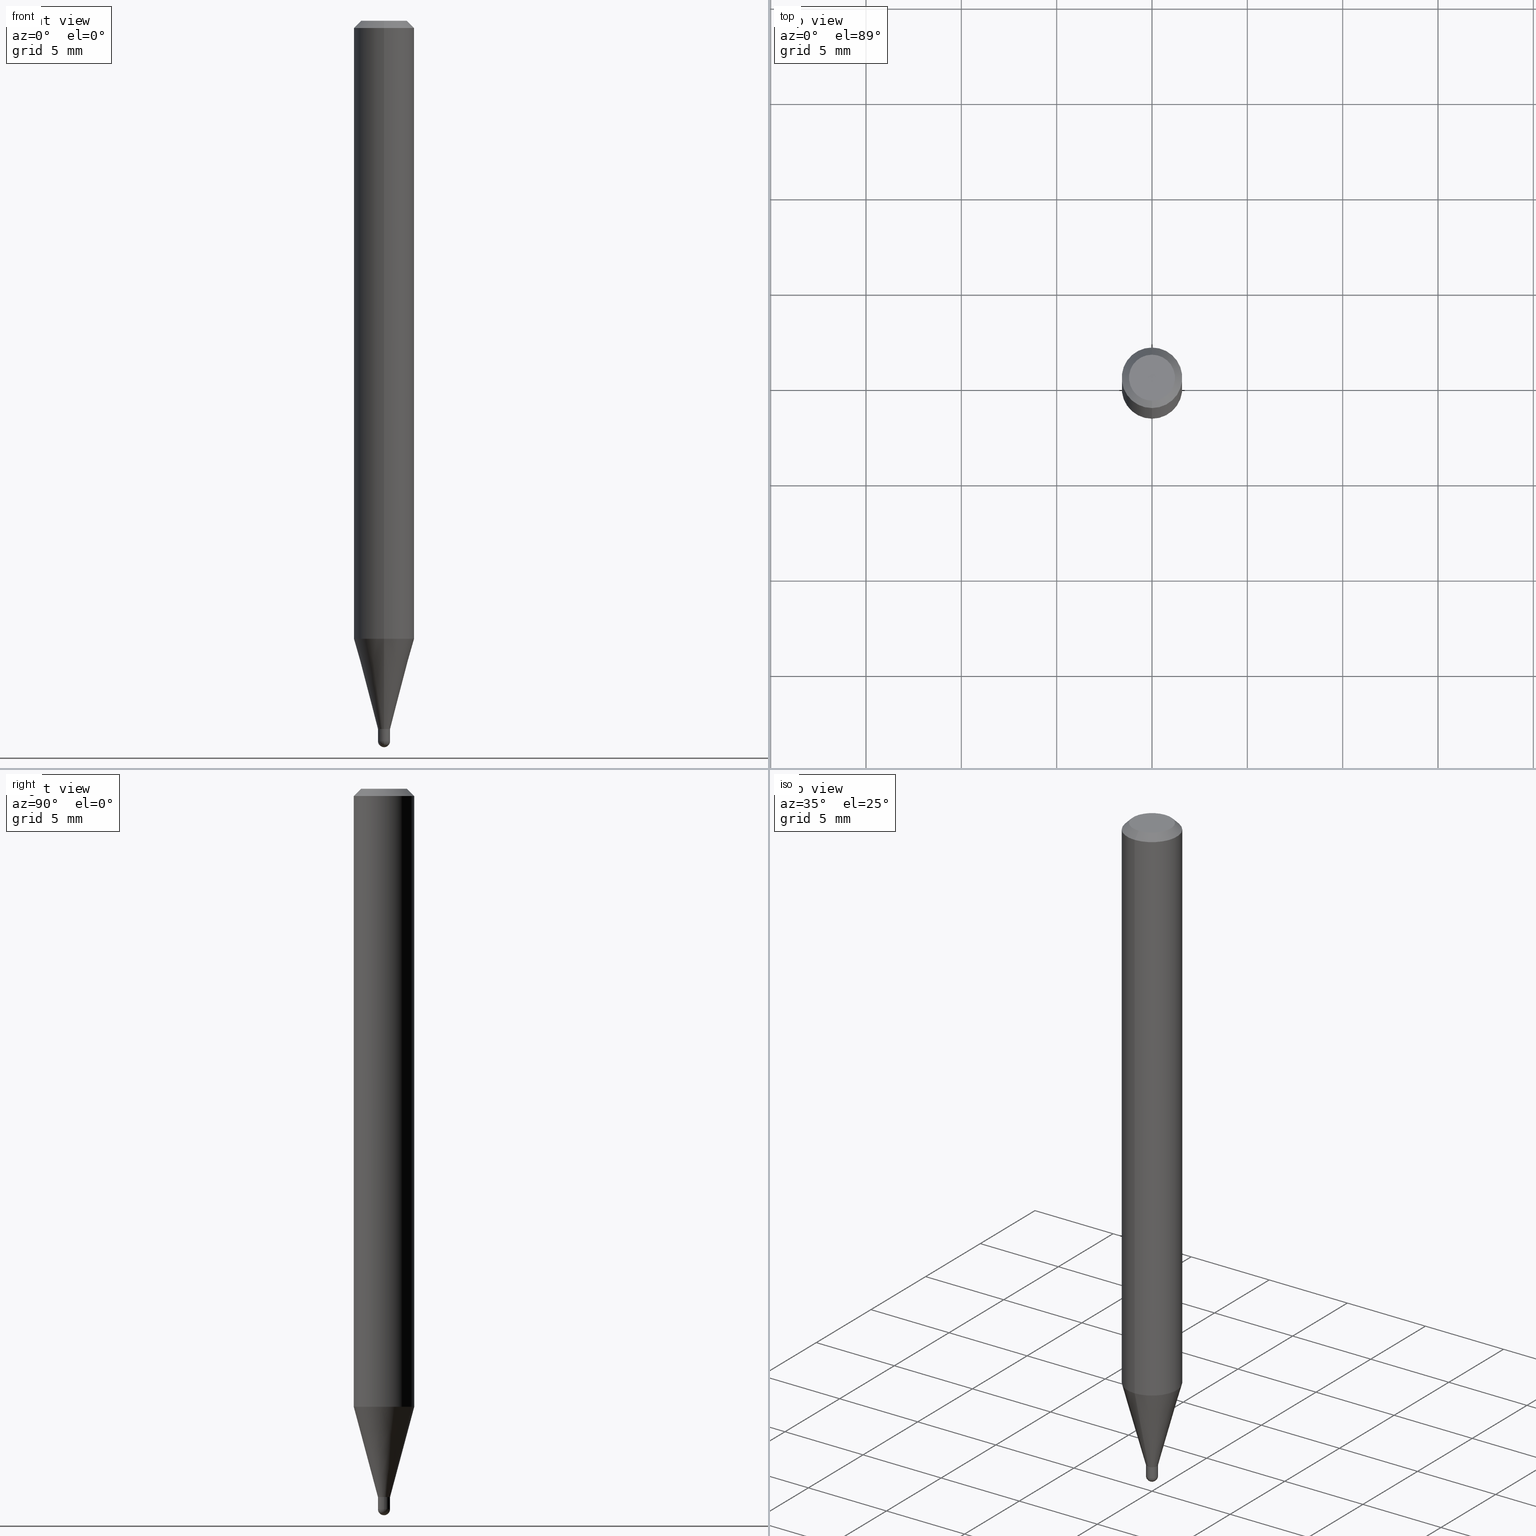
[diagram: canonical four-view strip — front | top / right | iso, engineering-drawing reading convention]
A machine part, canonical four-view strip (front | top / right | iso — engineering-drawing reading convention). The complete STEP part file that produces these views, byte-faithful:
ISO-10303-21;
HEADER;
FILE_DESCRIPTION (( 'STEP AP203' ),
    '1' );
FILE_NAME ('01382.STEP',
    '2024-03-07T20:09:45',
    ( '' ),
    ( '' ),
    'SwSTEP 2.0',
    'SolidWorks 2023',
    '' );
FILE_SCHEMA (( 'CONFIG_CONTROL_DESIGN' ));
ENDSEC;

DATA;
#1 = CALENDAR_DATE ( 2024, 7, 3 ) ;
#2 = CARTESIAN_POINT ( 'NONE',  ( 3.668218435147689277E-31, -5.237200203952304114E-17, -0.01500000000000000812 ) ) ;
#3 = CARTESIAN_POINT ( 'NONE',  ( -0.01250000000000000243, 8.881784197001254049E-17, -6.148668862818633278E-31 ) ) ;
#4 = VERTEX_POINT ( 'NONE', #353 ) ;
#5 = CARTESIAN_POINT ( 'NONE',  ( 3.637634849200391585E-29, -5.193578491529179799E-15, -1.487500000000000488 ) ) ;
#6 = ORIENTED_EDGE ( 'NONE', *, *, #118, .T. ) ;
#7 = DIRECTION ( 'NONE',  ( -2.445478956765124667E-29, 3.491466802634867700E-15, 1.000000000000000000 ) ) ;
#8 = AXIS2_PLACEMENT_3D ( 'NONE', #221, #7, #485 ) ;
#9 = ORIENTED_EDGE ( 'NONE', *, *, #12, .F. ) ;
#10 = CARTESIAN_POINT ( 'NONE',  ( 3.576512974268995298E-29, -5.106270198853495599E-15, -1.462500000000000355 ) ) ;
#11 = ORIENTED_EDGE ( 'NONE', *, *, #216, .F. ) ;
#12 = EDGE_CURVE ( 'NONE', #169, #51, #499, .T. ) ;
#13 = CARTESIAN_POINT ( 'NONE',  ( 3.668218435147689277E-31, -5.237200203952304114E-17, -0.01500000000000000812 ) ) ;
#14 = ORIENTED_EDGE ( 'NONE', *, *, #399, .F. ) ;
#15 = PERSON_AND_ORGANIZATION ( #387, #48 ) ;
#16 = CONICAL_SURFACE ( 'NONE', #154, 0.01200000000000000198, 0.7853981633974739252 ) ;
#17 = VERTEX_POINT ( 'NONE', #270 ) ;
#18 = CIRCLE ( 'NONE', #255, 0.04749999999999999362 ) ;
#19 = DIRECTION ( 'NONE',  ( -6.982962677686266711E-15, -1.000000000000000000, 0.000000000000000000 ) ) ;
#20 = UNCERTAINTY_MEASURE_WITH_UNIT (LENGTH_MEASURE( 1.000000000000000082E-05 ), #262, 'distance_accuracy_value', 'NONE');
#21 = PRODUCT_DEFINITION_SHAPE ( 'NONE', 'NONE',  #135 ) ;
#22 = ORIENTED_EDGE ( 'NONE', *, *, #294, .T. ) ;
#23 = CARTESIAN_POINT ( 'NONE',  ( -0.01250000000000000243, -5.061117132823627635E-15, -1.487500000000000488 ) ) ;
#24 = CARTESIAN_POINT ( 'NONE',  ( 3.666599772485494312E-29, -5.239518221013120565E-15, -1.500000000000000444 ) ) ;
#25 = ORIENTED_EDGE ( 'NONE', *, *, #476, .F. ) ;
#26 = CARTESIAN_POINT ( 'NONE',  ( 0.000000000000000000, 0.000000000000000000, 0.000000000000000000 ) ) ;
#27 = EDGE_LOOP ( 'NONE', ( #502, #220 ) ) ;
#28 = ADVANCED_FACE ( 'NONE', ( #150 ), #393, .T. ) ;
#29 = ORIENTED_EDGE ( 'NONE', *, *, #410, .F. ) ;
#30 = EDGE_CURVE ( 'NONE', #369, #4, #469, .T. ) ;
#31 = PERSON_AND_ORGANIZATION ( #387, #48 ) ;
#32 = CARTESIAN_POINT ( 'NONE',  ( 3.120180388494611084E-29, -4.454753623834846326E-15, -1.275897459621562424 ) ) ;
#33 = AXIS2_PLACEMENT_3D ( 'NONE', #360, #245, #326 ) ;
#34 = CARTESIAN_POINT ( 'NONE',  ( 8.704148513064776254E-17, 0.01199999999999489496, -1.462500000000000133 ) ) ;
#35 = COORDINATED_UNIVERSAL_TIME_OFFSET ( 5, 0, .BEHIND. ) ;
#36 = DIRECTION ( 'NONE',  ( -2.445478956765124667E-29, 3.491466802634867700E-15, 1.000000000000000000 ) ) ;
#37 = EDGE_LOOP ( 'NONE', ( #503, #89, #449, #373 ) ) ;
#38 = CARTESIAN_POINT ( 'NONE',  ( 3.576512974268995298E-29, -5.106270198853495599E-15, -1.462500000000000355 ) ) ;
#39 = LOCAL_TIME ( 15, 9, 45.00000000000000000, #284 ) ;
#40 = CLOSED_SHELL ( 'NONE', ( #28, #456, #351, #354, #275 ) ) ;
#41 = VECTOR ( 'NONE', #176, 39.37007874015748143 ) ;
#42 = CARTESIAN_POINT ( 'NONE',  ( 3.637634849200391585E-29, -5.193578491529179799E-15, -1.487500000000000488 ) ) ;
#43 = EDGE_CURVE ( 'NONE', #193, #17, #58, .T. ) ;
#44 = LINE ( 'NONE', #288, #500 ) ;
#45 = ORIENTED_EDGE ( 'NONE', *, *, #104, .F. ) ;
#46 = DIRECTION ( 'NONE',  ( -6.982962677686266711E-15, -1.000000000000000000, 0.000000000000000000 ) ) ;
#47 = ORIENTED_EDGE ( 'NONE', *, *, #63, .F. ) ;
#48 = ORGANIZATION ( 'UNSPECIFIED', 'UNSPECIFIED', '' ) ;
#49 = CARTESIAN_POINT ( 'NONE',  ( 4.364351673553919652E-16, 0.06249999999999995143, -0.01500000000000022669 ) ) ;
#50 = VECTOR ( 'NONE', #439, 39.37007874015748143 ) ;
#51 = VERTEX_POINT ( 'NONE', #234 ) ;
#52 = EDGE_CURVE ( 'NONE', #458, #508, #200, .T. ) ;
#53 = FACE_OUTER_BOUND ( 'NONE', #452, .T. ) ;
#54 = VERTEX_POINT ( 'NONE', #392 ) ;
#55 = ORIENTED_EDGE ( 'NONE', *, *, #237, .F. ) ;
#56 = APPROVAL_ROLE ( '' ) ;
#57 = AXIS2_PLACEMENT_3D ( 'NONE', #421, #501, #388 ) ;
#58 = CIRCLE ( 'NONE', #128, 0.01200000000000000198 ) ;
#59 = CARTESIAN_POINT ( 'NONE',  ( 3.576498129045762161E-29, -5.106291458058100676E-15, -1.462500000000000133 ) ) ;
#60 = DIRECTION ( 'NONE',  ( -6.982962677686265922E-15, -1.000000000000000000, 0.000000000000000000 ) ) ;
#61 = DIRECTION ( 'NONE',  ( 1.000000000000000000, -6.982962677686294321E-15, 0.000000000000000000 ) ) ;
#62 = LINE ( 'NONE', #226, #211 ) ;
#63 = EDGE_CURVE ( 'NONE', #172, #420, #371, .T. ) ;
#64 = ORIENTED_EDGE ( 'NONE', *, *, #183, .T. ) ;
#65 = CIRCLE ( 'NONE', #400, 0.01249999999999992610 ) ;
#66 = DIRECTION ( 'NONE',  ( -2.445478956765124667E-29, 3.491466802634867700E-15, 1.000000000000000000 ) ) ;
#67 = AXIS2_PLACEMENT_3D ( 'NONE', #349, #110, #19 ) ;
#68 = EDGE_CURVE ( 'NONE', #350, #508, #188, .T. ) ;
#69 = AXIS2_PLACEMENT_3D ( 'NONE', #337, #417, #450 ) ;
#70 = DIRECTION ( 'NONE',  ( -2.445478956765124947E-29, 3.491466802634867700E-15, 1.000000000000000000 ) ) ;
#71 = DIRECTION ( 'NONE',  ( -6.982962677686266711E-15, -1.000000000000000000, 3.491466802634868095E-15 ) ) ;
#72 = ORIENTED_EDGE ( 'NONE', *, *, #43, .T. ) ;
#73 = PERSON_AND_ORGANIZATION_ROLE ( 'design_supplier' ) ;
#74 = DIRECTION ( 'NONE',  ( -2.445478956765124667E-29, 3.491466802634867700E-15, 1.000000000000000000 ) ) ;
#75 = AXIS2_PLACEMENT_3D ( 'NONE', #267, #312, #60 ) ;
#76 = CIRCLE ( 'NONE', #94, 0.01250000000000000243 ) ;
#77 = CALENDAR_DATE ( 2024, 7, 3 ) ;
#78 = EDGE_CURVE ( 'NONE', #460, #437, #173, .T. ) ;
#79 = FACE_OUTER_BOUND ( 'NONE', #37, .T. ) ;
#80 = DIRECTION ( 'NONE',  ( -2.445478956765124667E-29, 3.491466802634867700E-15, 1.000000000000000000 ) ) ;
#81 = CARTESIAN_POINT ( 'NONE',  ( -8.379555213219944590E-17, -0.01200000000000510901, -1.462500000000000133 ) ) ;
#82 = EDGE_CURVE ( 'NONE', #51, #54, #309, .T. ) ;
#83 = AXIS2_PLACEMENT_3D ( 'NONE', #192, #146, #184 ) ;
#84 = CONICAL_SURFACE ( 'NONE', #235, 0.01200000000000000198, 0.7853981633974739252 ) ;
#85 = CARTESIAN_POINT ( 'NONE',  ( 4.440892098500939734E-16, 0.06249999999999995143, -0.01500000000000022669 ) ) ;
#86 = ORIENTED_EDGE ( 'NONE', *, *, #480, .T. ) ;
#87 = EDGE_CURVE ( 'NONE', #296, #369, #148, .T. ) ;
#88 = DIRECTION ( 'NONE',  ( 1.000000000000000000, -6.982962677686266711E-15, 4.883557194083112901E-29 ) ) ;
#89 = ORIENTED_EDGE ( 'NONE', *, *, #237, .T. ) ;
#90 = FACE_OUTER_BOUND ( 'NONE', #268, .T. ) ;
#91 = VERTEX_POINT ( 'NONE', #23 ) ;
#92 = AXIS2_PLACEMENT_3D ( 'NONE', #384, #426, #305 ) ;
#93 = FACE_OUTER_BOUND ( 'NONE', #27, .T. ) ;
#94 = AXIS2_PLACEMENT_3D ( 'NONE', #42, #276, #117 ) ;
#95 = ORIENTED_EDGE ( 'NONE', *, *, #87, .T. ) ;
#96 = DIRECTION ( 'NONE',  ( 2.438088387897960049E-29, -3.491481338843145188E-15, -1.000000000000000000 ) ) ;
#97 = EDGE_LOOP ( 'NONE', ( #25, #483 ) ) ;
#98 = APPROVAL_STATUS ( 'not_yet_approved' ) ;
#99 = CARTESIAN_POINT ( 'NONE',  ( 0.000000000000000000, 0.000000000000000000, 0.000000000000000000 ) ) ;
#100 = MECHANICAL_CONTEXT ( 'NONE', #143, 'mechanical' ) ;
#101 = AXIS2_PLACEMENT_3D ( 'NONE', #230, #190, #315 ) ;
#102 = ORIENTED_EDGE ( 'NONE', *, *, #423, .T. ) ;
#103 = VECTOR ( 'NONE', #203, 39.37007874015748854 ) ;
#104 = EDGE_CURVE ( 'NONE', #250, #4, #236, .T. ) ;
#105 = APPROVAL_DATE_TIME ( #310, #385 ) ;
#106 = CARTESIAN_POINT ( 'NONE',  ( 2.166941364163083057E-46, -3.093792246832395657E-32, -8.861010061724306558E-18 ) ) ;
#107 = DIRECTION ( 'NONE',  ( 1.839019923739652380E-15, 0.2588190451025322858, 0.9659258262890650926 ) ) ;
#108 = EDGE_CURVE ( 'NONE', #420, #172, #18, .T. ) ;
#109 = DIRECTION ( 'NONE',  ( -6.982962677686265922E-15, -1.000000000000000000, 3.483106191921935554E-15 ) ) ;
#110 = DIRECTION ( 'NONE',  ( -1.000000000000000000, 6.982962677686265922E-15, -4.883557194083112340E-29 ) ) ;
#111 = ORIENTED_EDGE ( 'NONE', *, *, #126, .T. ) ;
#112 = DIMENSIONAL_EXPONENTS ( 1.000000000000000000, 0.000000000000000000, 0.000000000000000000, 0.000000000000000000, 0.000000000000000000, 0.000000000000000000, 0.000000000000000000 ) ;
#113 = CIRCLE ( 'NONE', #486, 0.01250000000000000243 ) ;
#114 = PERSON_AND_ORGANIZATION ( #387, #48 ) ;
#115 = LINE ( 'NONE', #161, #103 ) ;
#116 = DATE_TIME_ROLE ( 'classification_date' ) ;
#117 = DIRECTION ( 'NONE',  ( 1.000000000000000000, -6.982962677686292743E-15, 0.000000000000000000 ) ) ;
#118 = EDGE_CURVE ( 'NONE', #17, #508, #286, .T. ) ;
#119 = APPROVAL_ROLE ( '' ) ;
#120 = FACE_OUTER_BOUND ( 'NONE', #336, .T. ) ;
#121 = CC_DESIGN_SECURITY_CLASSIFICATION ( #308, ( #264 ) ) ;
#122 = DIRECTION ( 'NONE',  ( 1.000000000000000000, -6.982962677686267499E-15, 4.876176775795936353E-29 ) ) ;
#123 = CARTESIAN_POINT ( 'NONE',  ( 3.576512974268994737E-29, -5.106270198853494022E-15, -1.462500000000000133 ) ) ;
#124 = ADVANCED_FACE ( 'NONE', ( #241 ), #391, .T. ) ;
#125 = DIRECTION ( 'NONE',  ( -6.982962677686265922E-15, -1.000000000000000000, 3.483106191921935554E-15 ) ) ;
#126 = EDGE_CURVE ( 'NONE', #250, #296, #432, .T. ) ;
#127 = ORIENTED_EDGE ( 'NONE', *, *, #126, .F. ) ;
#128 = AXIS2_PLACEMENT_3D ( 'NONE', #429, #66, #144 ) ;
#129 = AXIS2_PLACEMENT_3D ( 'NONE', #38, #80, #436 ) ;
#130 = CARTESIAN_POINT ( 'NONE',  ( 3.576512974268994737E-29, -5.106270198853494022E-15, -1.462500000000000133 ) ) ;
#131 = ORIENTED_EDGE ( 'NONE', *, *, #68, .T. ) ;
#132 = EDGE_CURVE ( 'NONE', #91, #224, #113, .T. ) ;
#133 = DIRECTION ( 'NONE',  ( -2.445478956765124667E-29, 3.491466802634867700E-15, 1.000000000000000000 ) ) ;
#134 = ORIENTED_EDGE ( 'NONE', *, *, #476, .T. ) ;
#135 = PRODUCT_DEFINITION ( 'UNKNOWN', '', #264, #259 ) ;
#136 = DIRECTION ( 'NONE',  ( -2.445478956765124667E-29, 3.491466802634867700E-15, 1.000000000000000000 ) ) ;
#137 = ORIENTED_EDGE ( 'NONE', *, *, #294, .F. ) ;
#138 = AXIS2_PLACEMENT_3D ( 'NONE', #335, #88, #46 ) ;
#139 = AXIS2_PLACEMENT_3D ( 'NONE', #26, #462, #382 ) ;
#140 = DIRECTION ( 'NONE',  ( 1.000000000000000000, -6.982962677686292743E-15, 0.000000000000000000 ) ) ;
#141 = CIRCLE ( 'NONE', #274, 0.06250000000000000000 ) ;
#142 = ORIENTED_EDGE ( 'NONE', *, *, #183, .F. ) ;
#143 = APPLICATION_CONTEXT ( 'configuration controlled 3d designs of mechanical parts and assemblies' ) ;
#144 = DIRECTION ( 'NONE',  ( -6.982962677686265922E-15, -1.000000000000000000, 0.000000000000000000 ) ) ;
#145 = CARTESIAN_POINT ( 'NONE',  ( 3.668218435147689277E-31, -5.237200203952304114E-17, -0.01500000000000000812 ) ) ;
#146 = DIRECTION ( 'NONE',  ( -2.445468806185136597E-29, 3.491481338843145583E-15, 1.000000000000000000 ) ) ;
#147 = LOCAL_TIME ( 15, 9, 45.00000000000000000, #189 ) ;
#148 = LINE ( 'NONE', #343, #201 ) ;
#149 = AXIS2_PLACEMENT_3D ( 'NONE', #440, #36, #362 ) ;
#150 = FACE_OUTER_BOUND ( 'NONE', #342, .T. ) ;
#151 = CARTESIAN_POINT ( 'NONE',  ( 8.881784197004743526E-17, 0.01249999999999477918, -1.462000000000000188 ) ) ;
#152 = VERTEX_POINT ( 'NONE', #404 ) ;
#153 = PERSON_AND_ORGANIZATION ( #387, #48 ) ;
#154 = AXIS2_PLACEMENT_3D ( 'NONE', #488, #133, #448 ) ;
#155 = FACE_OUTER_BOUND ( 'NONE', #463, .T. ) ;
#156 = CIRCLE ( 'NONE', #129, 0.01249999999999992610 ) ;
#157 = CALENDAR_DATE ( 2024, 7, 3 ) ;
#158 = CARTESIAN_POINT ( 'NONE',  ( 3.637634849200391585E-29, -5.193578491529179799E-15, -1.487500000000000488 ) ) ;
#159 = DATE_TIME_ROLE ( 'creation_date' ) ;
#160 = DIRECTION ( 'NONE',  ( 6.982962677686265922E-15, 1.000000000000000000, -3.483106191921935554E-15 ) ) ;
#161 = CARTESIAN_POINT ( 'NONE',  ( -8.728703347104204628E-17, -0.01250000000000503313, -1.462500000000000355 ) ) ;
#162 =( GEOMETRIC_REPRESENTATION_CONTEXT ( 3 ) GLOBAL_UNCERTAINTY_ASSIGNED_CONTEXT ( ( #20 ) ) GLOBAL_UNIT_ASSIGNED_CONTEXT ( ( #262, #495, #497 ) ) REPRESENTATION_CONTEXT ( 'NONE', 'WORKASPACE' ) );
#163 = PERSON_AND_ORGANIZATION ( #387, #48 ) ;
#164 = CARTESIAN_POINT ( 'NONE',  ( 3.120180388494611084E-29, -4.454753623834846326E-15, -1.275897459621562424 ) ) ;
#165 = PRODUCT ( '01382', '01382', '', ( #100 ) ) ;
#166 = ORIENTED_EDGE ( 'NONE', *, *, #325, .T. ) ;
#167 = APPLICATION_CONTEXT ( 'configuration controlled 3d designs of mechanical parts and assemblies' ) ;
#168 = DIRECTION ( 'NONE',  ( -2.445468806185136877E-29, 3.491481338843145188E-15, 1.000000000000000000 ) ) ;
#169 = VERTEX_POINT ( 'NONE', #282 ) ;
#170 = CARTESIAN_POINT ( 'NONE',  ( 0.000000000000000000, 0.000000000000000000, 0.000000000000000000 ) ) ;
#171 = MANIFOLD_SOLID_BREP ( 'Body-Move/Copy2[1]', #40 ) ;
#172 = VERTEX_POINT ( 'NONE', #395 ) ;
#173 = CIRCLE ( 'NONE', #461, 0.01250000000000010651 ) ;
#174 = MANIFOLD_SOLID_BREP ( 'Body-Move/Copy2[2]', #272 ) ;
#175 = AXIS2_PLACEMENT_3D ( 'NONE', #178, #408, #482 ) ;
#176 = DIRECTION ( 'NONE',  ( -2.445478956765124947E-29, 3.491466802634867700E-15, 1.000000000000000000 ) ) ;
#177 = ORIENTED_EDGE ( 'NONE', *, *, #198, .F. ) ;
#178 = CARTESIAN_POINT ( 'NONE',  ( 3.316907271900976096E-16, 0.04749999999999999362, -1.702751781560183396E-16 ) ) ;
#179 = ORIENTED_EDGE ( 'NONE', *, *, #253, .F. ) ;
#180 = DIRECTION ( 'NONE',  ( -2.445468806185136597E-29, 3.491481338843145583E-15, 1.000000000000000000 ) ) ;
#181 = EDGE_LOOP ( 'NONE', ( #266, #72, #6, #332 ) ) ;
#182 = LOCAL_TIME ( 15, 9, 45.00000000000000000, #35 ) ;
#183 = EDGE_CURVE ( 'NONE', #224, #169, #76, .T. ) ;
#184 = DIRECTION ( 'NONE',  ( 1.000000000000000000, -6.982962677686292743E-15, 0.000000000000000000 ) ) ;
#185 = VECTOR ( 'NONE', #168, 39.37007874015748143 ) ;
#186 = ORIENTED_EDGE ( 'NONE', *, *, #297, .T. ) ;
#187 = DIRECTION ( 'NONE',  ( -6.982962677686266711E-15, -1.000000000000000000, 0.000000000000000000 ) ) ;
#188 = LINE ( 'NONE', #195, #398 ) ;
#189 = COORDINATED_UNIVERSAL_TIME_OFFSET ( 5, 0, .BEHIND. ) ;
#190 = DIRECTION ( 'NONE',  ( -2.445478956765124667E-29, 3.491466802634867700E-15, 1.000000000000000000 ) ) ;
#191 = ADVANCED_FACE ( 'NONE', ( #280 ), #209, .F. ) ;
#192 = CARTESIAN_POINT ( 'NONE',  ( 3.637634849200391585E-29, -5.193578491529179799E-15, -1.487500000000000488 ) ) ;
#193 = VERTEX_POINT ( 'NONE', #34 ) ;
#194 = CC_DESIGN_PERSON_AND_ORGANIZATION_ASSIGNMENT ( #376, #424, ( #165 ) ) ;
#195 = CARTESIAN_POINT ( 'NONE',  ( -8.728703347107781619E-17, -0.01249999999999992610, 4.364333503293559234E-17 ) ) ;
#196 = PERSON_AND_ORGANIZATION ( #387, #48 ) ;
#197 = ORIENTED_EDGE ( 'NONE', *, *, #82, .F. ) ;
#198 = EDGE_CURVE ( 'NONE', #152, #350, #156, .T. ) ;
#199 = CARTESIAN_POINT ( 'NONE',  ( -4.287811248607203282E-16, -0.06250000000000005551, -0.01499999999999979128 ) ) ;
#200 = CIRCLE ( 'NONE', #101, 0.01249999999999992610 ) ;
#201 = VECTOR ( 'NONE', #70, 39.37007874015748143 ) ;
#202 = PERSON_AND_ORGANIZATION_ROLE ( 'creator' ) ;
#203 = DIRECTION ( 'NONE',  ( -1.807323732225381415E-15, -0.2588190451025255134, 0.9659258262890669799 ) ) ;
#204 = ADVANCED_FACE ( 'NONE', ( #120 ), #84, .T. ) ;
#205 = DATE_AND_TIME ( #1, #378 ) ;
#206 = FACE_OUTER_BOUND ( 'NONE', #493, .T. ) ;
#207 = ORIENTED_EDGE ( 'NONE', *, *, #216, .T. ) ;
#208 = SHAPE_DEFINITION_REPRESENTATION ( #21, #304 ) ;
#209 = CYLINDRICAL_SURFACE ( 'NONE', #283, 0.01249999999999992610 ) ;
#210 = AXIS2_PLACEMENT_3D ( 'NONE', #269, #465, #187 ) ;
#211 = VECTOR ( 'NONE', #107, 39.37007874015748143 ) ;
#212 = CC_DESIGN_PERSON_AND_ORGANIZATION_ASSIGNMENT ( #323, #509, ( #135 ) ) ;
#213 = FACE_OUTER_BOUND ( 'NONE', #97, .T. ) ;
#214 = ORIENTED_EDGE ( 'NONE', *, *, #108, .T. ) ;
#215 = FACE_OUTER_BOUND ( 'NONE', #252, .T. ) ;
#216 = EDGE_CURVE ( 'NONE', #350, #250, #115, .T. ) ;
#217 = ORIENTED_EDGE ( 'NONE', *, *, #399, .T. ) ;
#218 = CONICAL_SURFACE ( 'NONE', #33, 0.01249999999999992610, 0.2617993877991578455 ) ;
#219 = PLANE ( 'NONE',  #248 ) ;
#220 = ORIENTED_EDGE ( 'NONE', *, *, #322, .T. ) ;
#221 = CARTESIAN_POINT ( 'NONE',  ( 3.576512974268995298E-29, -5.106270198853495599E-15, -1.462500000000000355 ) ) ;
#222 = ORIENTED_EDGE ( 'NONE', *, *, #511, .T. ) ;
#223 =( LENGTH_UNIT ( ) NAMED_UNIT ( * ) SI_UNIT ( $, .METRE. ) );
#224 = VERTEX_POINT ( 'NONE', #318 ) ;
#225 = ADVANCED_FACE ( 'NONE', ( #79 ), #359, .T. ) ;
#226 = CARTESIAN_POINT ( 'NONE',  ( 8.881784197004774341E-17, 0.01249999999999481907, -1.462500000000000355 ) ) ;
#227 = DIRECTION ( 'NONE',  ( -2.445478956765124947E-29, 3.491466802634867700E-15, 1.000000000000000000 ) ) ;
#228 = SPHERICAL_SURFACE ( 'NONE', #92, 0.01250000000000010651 ) ;
#229 = ADVANCED_FACE ( 'NONE', ( #155 ), #438, .T. ) ;
#230 = CARTESIAN_POINT ( 'NONE',  ( 3.575290234790612456E-29, -5.104524465452176993E-15, -1.462000000000000188 ) ) ;
#231 = ORIENTED_EDGE ( 'NONE', *, *, #480, .F. ) ;
#232 = CIRCLE ( 'NONE', #301, 0.06250000000000000000 ) ;
#233 = CC_DESIGN_APPROVAL ( #385, ( #135 ) ) ;
#234 = CARTESIAN_POINT ( 'NONE',  ( 0.01250000000000000069, -5.193578491529179010E-15, -1.462500000000000133 ) ) ;
#235 = AXIS2_PLACEMENT_3D ( 'NONE', #123, #74, #403 ) ;
#236 = LINE ( 'NONE', #498, #361 ) ;
#237 = EDGE_CURVE ( 'NONE', #296, #250, #232, .T. ) ;
#238 = APPROVAL_ROLE ( '' ) ;
#239 = CYLINDRICAL_SURFACE ( 'NONE', #494, 0.01250000000000000243 ) ;
#240 = CC_DESIGN_DATE_AND_TIME_ASSIGNMENT ( #479, #116, ( #308 ) ) ;
#241 = FACE_OUTER_BOUND ( 'NONE', #412, .T. ) ;
#242 = CONICAL_SURFACE ( 'NONE', #8, 0.01249999999999992610, 0.2617993877991578455 ) ;
#243 = APPROVAL_STATUS ( 'not_yet_approved' ) ;
#244 = DIRECTION ( 'NONE',  ( -6.982962677686266711E-15, -1.000000000000000000, 3.491466802634868489E-15 ) ) ;
#245 = DIRECTION ( 'NONE',  ( -2.445478956765124667E-29, 3.491466802634867700E-15, 1.000000000000000000 ) ) ;
#246 = CC_DESIGN_DATE_AND_TIME_ASSIGNMENT ( #355, #159, ( #135 ) ) ;
#247 = DIRECTION ( 'NONE',  ( -6.982962677686265922E-15, -1.000000000000000000, 4.370956789862821150E-15 ) ) ;
#248 = AXIS2_PLACEMENT_3D ( 'NONE', #445, #96, #249 ) ;
#249 = DIRECTION ( 'NONE',  ( -1.000000000000000000, 6.982962677686265922E-15, -4.876176775795935793E-29 ) ) ;
#250 = VERTEX_POINT ( 'NONE', #358 ) ;
#251 = FACE_OUTER_BOUND ( 'NONE', #181, .T. ) ;
#252 = EDGE_LOOP ( 'NONE', ( #111, #95, #29, #45 ) ) ;
#253 = EDGE_CURVE ( 'NONE', #420, #4, #434, .T. ) ;
#254 = ORIENTED_EDGE ( 'NONE', *, *, #132, .T. ) ;
#255 = AXIS2_PLACEMENT_3D ( 'NONE', #106, #321, #244 ) ;
#256 = LINE ( 'NONE', #374, #41 ) ;
#257 = ORIENTED_EDGE ( 'NONE', *, *, #322, .F. ) ;
#258 = DIRECTION ( 'NONE',  ( 4.937700262164548042E-15, 0.7071067811865451302, -0.7071067811865499042 ) ) ;
#259 = DESIGN_CONTEXT ( 'detailed design', #167, 'design' ) ;
#260 = ORIENTED_EDGE ( 'NONE', *, *, #423, .F. ) ;
#261 = APPROVAL ( #243, 'UNSPECIFIED' ) ;
#262 =( CONVERSION_BASED_UNIT ( 'INCH', #467 ) LENGTH_UNIT ( ) NAMED_UNIT ( #112 ) );
#263 = CARTESIAN_POINT ( 'NONE',  ( 2.166941364163083057E-46, -3.093792246832395657E-32, -8.861010061724306558E-18 ) ) ;
#264 = PRODUCT_DEFINITION_FORMATION_WITH_SPECIFIED_SOURCE ( 'ANY', '', #165, .NOT_KNOWN. ) ;
#265 = AXIS2_PLACEMENT_3D ( 'NONE', #5, #180, #140 ) ;
#266 = ORIENTED_EDGE ( 'NONE', *, *, #390, .F. ) ;
#267 = CARTESIAN_POINT ( 'NONE',  ( 3.576512974268994737E-29, -5.106270198853494022E-15, -1.462500000000000133 ) ) ;
#268 = EDGE_LOOP ( 'NONE', ( #306, #277, #293, #142 ) ) ;
#269 = CARTESIAN_POINT ( 'NONE',  ( 3.575290234790612456E-29, -5.104524465452176993E-15, -1.462000000000000188 ) ) ;
#270 = CARTESIAN_POINT ( 'NONE',  ( -8.379555213219944590E-17, -0.01200000000000510901, -1.462500000000000133 ) ) ;
#271 = CC_DESIGN_APPROVAL ( #459, ( #308 ) ) ;
#272 = CLOSED_SHELL ( 'NONE', ( #505, #204, #124, #365, #370, #291, #225, #229, #381, #441, #447, #191 ) ) ;
#273 = ORIENTED_EDGE ( 'NONE', *, *, #118, .F. ) ;
#274 = AXIS2_PLACEMENT_3D ( 'NONE', #13, #136, #125 ) ;
#275 = ADVANCED_FACE ( 'NONE', ( #356 ), #239, .T. ) ;
#276 = DIRECTION ( 'NONE',  ( -2.445468806185136597E-29, 3.491481338843145583E-15, 1.000000000000000000 ) ) ;
#277 = ORIENTED_EDGE ( 'NONE', *, *, #78, .T. ) ;
#278 = CC_DESIGN_PERSON_AND_ORGANIZATION_ASSIGNMENT ( #196, #202, ( #264 ) ) ;
#279 = COORDINATED_UNIVERSAL_TIME_OFFSET ( 5, 0, .BEHIND. ) ;
#280 = FACE_OUTER_BOUND ( 'NONE', #489, .T. ) ;
#281 = CIRCLE ( 'NONE', #75, 0.01200000000000000198 ) ;
#282 = CARTESIAN_POINT ( 'NONE',  ( 0.01250000000000000243, -5.237222008264718177E-15, -1.487500000000000488 ) ) ;
#283 = AXIS2_PLACEMENT_3D ( 'NONE', #405, #510, #71 ) ;
#284 = COORDINATED_UNIVERSAL_TIME_OFFSET ( 5, 0, .BEHIND. ) ;
#285 = CC_DESIGN_PERSON_AND_ORGANIZATION_ASSIGNMENT ( #163, #73, ( #264 ) ) ;
#286 = LINE ( 'NONE', #81, #319 ) ;
#287 = DIRECTION ( 'NONE',  ( 1.000000000000000000, -6.982962677686292743E-15, 0.000000000000000000 ) ) ;
#288 = CARTESIAN_POINT ( 'NONE',  ( 8.526512829124778167E-17, 0.01199999999999489496, -1.462500000000000133 ) ) ;
#289 = ORIENTED_EDGE ( 'NONE', *, *, #198, .T. ) ;
#290 = AXIS2_PLACEMENT_3D ( 'NONE', #145, #466, #109 ) ;
#291 = ADVANCED_FACE ( 'NONE', ( #206 ), #218, .T. ) ;
#292 = DIRECTION ( 'NONE',  ( -6.982962677686265922E-15, -1.000000000000000000, 3.491466802634867700E-15 ) ) ;
#293 = ORIENTED_EDGE ( 'NONE', *, *, #297, .F. ) ;
#294 = EDGE_CURVE ( 'NONE', #172, #369, #478, .T. ) ;
#295 = DIRECTION ( 'NONE',  ( -6.982962677686265922E-15, -1.000000000000000000, 3.491466802634867700E-15 ) ) ;
#296 = VERTEX_POINT ( 'NONE', #419 ) ;
#297 = EDGE_CURVE ( 'NONE', #169, #437, #407, .T. ) ;
#298 = CARTESIAN_POINT ( 'NONE',  ( -3.773273898774340269E-16, -0.04749999999999999362, 1.569836630634318666E-16 ) ) ;
#299 = ORIENTED_EDGE ( 'NONE', *, *, #132, .F. ) ;
#300 = CIRCLE ( 'NONE', #69, 0.01250000000000000069 ) ;
#301 = AXIS2_PLACEMENT_3D ( 'NONE', #32, #324, #247 ) ;
#302 = PLANE ( 'NONE',  #175 ) ;
#303 = ORIENTED_EDGE ( 'NONE', *, *, #30, .T. ) ;
#304 = ADVANCED_BREP_SHAPE_REPRESENTATION ( '01382', ( #171, #174, #57 ), #162 ) ;
#305 = DIRECTION ( 'NONE',  ( -6.982962677686266711E-15, -1.000000000000000000, 0.000000000000000000 ) ) ;
#306 = ORIENTED_EDGE ( 'NONE', *, *, #472, .F. ) ;
#307 = DIRECTION ( 'NONE',  ( -2.445468806185136877E-29, 3.491481338843145188E-15, 1.000000000000000000 ) ) ;
#308 = SECURITY_CLASSIFICATION ( '', '', #320 ) ;
#309 = CIRCLE ( 'NONE', #416, 0.01250000000000000069 ) ;
#310 = DATE_AND_TIME ( #344, #147 ) ;
#311 = DIRECTION ( 'NONE',  ( -2.445478956765124947E-29, 3.491466802634867700E-15, 1.000000000000000000 ) ) ;
#312 = DIRECTION ( 'NONE',  ( -2.445478956765124667E-29, 3.491466802634867700E-15, 1.000000000000000000 ) ) ;
#313 = DIRECTION ( 'NONE',  ( -2.445468806185136597E-29, 3.491481338843145583E-15, 1.000000000000000000 ) ) ;
#314 = CARTESIAN_POINT ( 'NONE',  ( -8.728703347104235443E-17, -0.01250000000000507476, -1.462000000000000188 ) ) ;
#315 = DIRECTION ( 'NONE',  ( -6.982962677686266711E-15, -1.000000000000000000, 0.000000000000000000 ) ) ;
#316 = CIRCLE ( 'NONE', #67, 0.01250000000000010651 ) ;
#317 = DATE_AND_TIME ( #77, #39 ) ;
#318 = CARTESIAN_POINT ( 'NONE',  ( -8.728703347104234210E-17, -0.01250000000000524997, -1.487500000000000488 ) ) ;
#319 = VECTOR ( 'NONE', #474, 39.37007874015748143 ) ;
#320 = SECURITY_CLASSIFICATION_LEVEL ( 'unclassified' ) ;
#321 = DIRECTION ( 'NONE',  ( -2.445478956765124667E-29, 3.491466802634867700E-15, 1.000000000000000000 ) ) ;
#322 = EDGE_CURVE ( 'NONE', #54, #51, #300, .T. ) ;
#323 = PERSON_AND_ORGANIZATION ( #387, #48 ) ;
#324 = DIRECTION ( 'NONE',  ( -2.445478956765124667E-29, 3.491466802634867700E-15, 1.000000000000000000 ) ) ;
#325 = EDGE_CURVE ( 'NONE', #350, #152, #65, .T. ) ;
#326 = DIRECTION ( 'NONE',  ( -6.982962677686266711E-15, -1.000000000000000000, 0.000000000000000000 ) ) ;
#327 = AXIS2_PLACEMENT_3D ( 'NONE', #164, #442, #401 ) ;
#328 = DIRECTION ( 'NONE',  ( -2.445468806185136597E-29, 3.491481338843145583E-15, 1.000000000000000000 ) ) ;
#329 = DIRECTION ( 'NONE',  ( -6.982962677686266711E-15, -1.000000000000000000, 0.000000000000000000 ) ) ;
#330 = ORIENTED_EDGE ( 'NONE', *, *, #511, .F. ) ;
#331 = PLANE ( 'NONE',  #340 ) ;
#332 = ORIENTED_EDGE ( 'NONE', *, *, #52, .F. ) ;
#333 = DIRECTION ( 'NONE',  ( -2.445478956765124106E-29, 3.491466802634867700E-15, 1.000000000000000000 ) ) ;
#334 = ORIENTED_EDGE ( 'NONE', *, *, #410, .T. ) ;
#335 = CARTESIAN_POINT ( 'NONE',  ( 3.636565891338916928E-29, -5.195109300028113672E-15, -1.487500000000000266 ) ) ;
#336 = EDGE_LOOP ( 'NONE', ( #134, #491, #330, #273 ) ) ;
#337 = CARTESIAN_POINT ( 'NONE',  ( 3.576498129045762161E-29, -5.106291458058100676E-15, -1.462500000000000133 ) ) ;
#338 = ORIENTED_EDGE ( 'NONE', *, *, #78, .F. ) ;
#339 = CIRCLE ( 'NONE', #83, 0.01250000000000000243 ) ;
#340 = AXIS2_PLACEMENT_3D ( 'NONE', #130, #333, #292 ) ;
#341 = APPLICATION_PROTOCOL_DEFINITION ( 'international standard', 'config_control_design', 1994, #167 ) ;
#342 = EDGE_LOOP ( 'NONE', ( #86, #217, #197, #9, #186 ) ) ;
#343 = CARTESIAN_POINT ( 'NONE',  ( 4.440892098500625669E-16, 0.06250000000000000000, -2.182166751646792313E-16 ) ) ;
#344 = CALENDAR_DATE ( 2024, 7, 3 ) ;
#345 = CARTESIAN_POINT ( 'NONE',  ( 3.636565891338916928E-29, -5.195109300028113672E-15, -1.487500000000000266 ) ) ;
#346 = CC_DESIGN_PERSON_AND_ORGANIZATION_ASSIGNMENT ( #114, #394, ( #308 ) ) ;
#347 = APPROVAL_PERSON_ORGANIZATION ( #15, #385, #56 ) ;
#348 = VECTOR ( 'NONE', #258, 39.37007874015748143 ) ;
#349 = CARTESIAN_POINT ( 'NONE',  ( 3.636565891338916928E-29, -5.195109300028113672E-15, -1.487500000000000266 ) ) ;
#350 = VERTEX_POINT ( 'NONE', #492 ) ;
#351 = ADVANCED_FACE ( 'NONE', ( #93 ), #219, .F. ) ;
#352 = FACE_OUTER_BOUND ( 'NONE', #427, .T. ) ;
#353 = CARTESIAN_POINT ( 'NONE',  ( -4.364351673553912750E-16, -0.06250000000000005551, -0.01499999999999979128 ) ) ;
#354 = ADVANCED_FACE ( 'NONE', ( #411 ), #364, .T. ) ;
#355 = DATE_AND_TIME ( #477, #430 ) ;
#356 = FACE_OUTER_BOUND ( 'NONE', #446, .T. ) ;
#357 = CC_DESIGN_APPROVAL ( #261, ( #264 ) ) ;
#358 = CARTESIAN_POINT ( 'NONE',  ( -4.364351673553606080E-16, -0.06250000000000446865, -1.275897459621562202 ) ) ;
#359 = CYLINDRICAL_SURFACE ( 'NONE', #149, 0.06250000000000000000 ) ;
#360 = CARTESIAN_POINT ( 'NONE',  ( 3.576512974268995298E-29, -5.106270198853495599E-15, -1.462500000000000355 ) ) ;
#361 = VECTOR ( 'NONE', #311, 39.37007874015748143 ) ;
#362 = DIRECTION ( 'NONE',  ( -6.982962677686265922E-15, -1.000000000000000000, 3.491466802634867700E-15 ) ) ;
#363 = AXIS2_PLACEMENT_3D ( 'NONE', #170, #366, #295 ) ;
#364 = SPHERICAL_SURFACE ( 'NONE', #138, 0.01250000000000010651 ) ;
#365 = ADVANCED_FACE ( 'NONE', ( #215 ), #368, .T. ) ;
#366 = DIRECTION ( 'NONE',  ( -2.445478956765124667E-29, 3.491466802634867700E-15, 1.000000000000000000 ) ) ;
#367 = ORIENTED_EDGE ( 'NONE', *, *, #464, .F. ) ;
#368 = CYLINDRICAL_SURFACE ( 'NONE', #363, 0.06250000000000000000 ) ;
#369 = VERTEX_POINT ( 'NONE', #85 ) ;
#370 = ADVANCED_FACE ( 'NONE', ( #53 ), #242, .T. ) ;
#371 = CIRCLE ( 'NONE', #484, 0.04749999999999999362 ) ;
#372 = FACE_OUTER_BOUND ( 'NONE', #487, .T. ) ;
#373 = ORIENTED_EDGE ( 'NONE', *, *, #30, .F. ) ;
#374 = CARTESIAN_POINT ( 'NONE',  ( 8.881784197001198582E-17, 0.01249999999999992610, -4.364333503293559234E-17 ) ) ;
#375 = ORIENTED_EDGE ( 'NONE', *, *, #68, .F. ) ;
#376 = PERSON_AND_ORGANIZATION ( #387, #48 ) ;
#377 = ORIENTED_EDGE ( 'NONE', *, *, #108, .F. ) ;
#378 = LOCAL_TIME ( 15, 9, 45.00000000000000000, #402 ) ;
#379 = AXIS2_PLACEMENT_3D ( 'NONE', #99, #313, #496 ) ;
#380 = AXIS2_PLACEMENT_3D ( 'NONE', #506, #512, #471 ) ;
#381 = ADVANCED_FACE ( 'NONE', ( #372 ), #302, .F. ) ;
#382 = DIRECTION ( 'NONE',  ( -6.982962677686266711E-15, -1.000000000000000000, 3.491466802634868095E-15 ) ) ;
#383 = DIRECTION ( 'NONE',  ( -2.445468806185136597E-29, 3.491481338843145583E-15, 1.000000000000000000 ) ) ;
#384 = CARTESIAN_POINT ( 'NONE',  ( 3.636565891338916928E-29, -5.195109300028113672E-15, -1.487500000000000266 ) ) ;
#385 = APPROVAL ( #98, 'UNSPECIFIED' ) ;
#386 = DIRECTION ( 'NONE',  ( -6.982962677686266711E-15, -1.000000000000000000, 3.491466802634868489E-15 ) ) ;
#387 = PERSON ( 'UNSPECIFIED', 'UNSPECIFIED', 'UNSPECIFIED', ('UNSPECIFIED'), ('UNSPECIFIED'), ('UNSPECIFIED') ) ;
#388 = DIRECTION ( 'NONE',  ( 1.000000000000000000, 0.000000000000000000, 0.000000000000000000 ) ) ;
#389 = ORIENTED_EDGE ( 'NONE', *, *, #52, .T. ) ;
#390 = EDGE_CURVE ( 'NONE', #193, #458, #44, .T. ) ;
#391 = CONICAL_SURFACE ( 'NONE', #380, 0.06250000000000000000, 0.7853981633974483900 ) ;
#392 = CARTESIAN_POINT ( 'NONE',  ( -0.01250000000000000069, -5.061117132823627635E-15, -1.462500000000000133 ) ) ;
#393 = CYLINDRICAL_SURFACE ( 'NONE', #379, 0.01250000000000000243 ) ;
#394 = PERSON_AND_ORGANIZATION_ROLE ( 'classification_officer' ) ;
#395 = CARTESIAN_POINT ( 'NONE',  ( 3.840629472727447874E-16, 0.04749999999999999362, -1.747056831868805136E-16 ) ) ;
#396 = ORIENTED_EDGE ( 'NONE', *, *, #325, .F. ) ;
#397 = APPROVAL_PERSON_ORGANIZATION ( #153, #459, #119 ) ;
#398 = VECTOR ( 'NONE', #227, 39.37007874015748143 ) ;
#399 = EDGE_CURVE ( 'NONE', #91, #54, #413, .T. ) ;
#400 = AXIS2_PLACEMENT_3D ( 'NONE', #10, #454, #329 ) ;
#401 = DIRECTION ( 'NONE',  ( -6.982962677686265922E-15, -1.000000000000000000, 4.370956789862821150E-15 ) ) ;
#402 = COORDINATED_UNIVERSAL_TIME_OFFSET ( 5, 0, .BEHIND. ) ;
#403 = DIRECTION ( 'NONE',  ( -6.982962677686265922E-15, -1.000000000000000000, 0.000000000000000000 ) ) ;
#404 = CARTESIAN_POINT ( 'NONE',  ( 2.664535259100708892E-16, 0.01249999999999481907, -1.462500000000000355 ) ) ;
#405 = CARTESIAN_POINT ( 'NONE',  ( 0.000000000000000000, 0.000000000000000000, 0.000000000000000000 ) ) ;
#406 = VECTOR ( 'NONE', #307, 39.37007874015748143 ) ;
#407 = CIRCLE ( 'NONE', #265, 0.01250000000000000243 ) ;
#408 = DIRECTION ( 'NONE',  ( 2.445478956765124106E-29, -3.491466802634867700E-15, -1.000000000000000000 ) ) ;
#409 = ORIENTED_EDGE ( 'NONE', *, *, #12, .T. ) ;
#410 = EDGE_CURVE ( 'NONE', #4, #369, #141, .T. ) ;
#411 = FACE_OUTER_BOUND ( 'NONE', #418, .T. ) ;
#412 = EDGE_LOOP ( 'NONE', ( #377, #455, #334, #137 ) ) ;
#413 = LINE ( 'NONE', #3, #185 ) ;
#414 = PRODUCT_RELATED_PRODUCT_CATEGORY ( 'detail', '', ( #165 ) ) ;
#415 = ORIENTED_EDGE ( 'NONE', *, *, #472, .T. ) ;
#416 = AXIS2_PLACEMENT_3D ( 'NONE', #59, #383, #61 ) ;
#417 = DIRECTION ( 'NONE',  ( -2.445468806185136597E-29, 3.491481338843145583E-15, 1.000000000000000000 ) ) ;
#418 = EDGE_LOOP ( 'NONE', ( #338, #415, #299, #231 ) ) ;
#419 = CARTESIAN_POINT ( 'NONE',  ( 4.440892098500936776E-16, 0.06249999999999554523, -1.275897459621562646 ) ) ;
#420 = VERTEX_POINT ( 'NONE', #298 ) ;
#421 = CARTESIAN_POINT ( 'NONE',  ( 0.000000000000000000, 0.000000000000000000, 0.000000000000000000 ) ) ;
#422 = DIRECTION ( 'NONE',  ( -2.445478956765124667E-29, 3.491466802634867700E-15, 1.000000000000000000 ) ) ;
#423 = EDGE_CURVE ( 'NONE', #152, #458, #256, .T. ) ;
#424 = PERSON_AND_ORGANIZATION_ROLE ( 'design_owner' ) ;
#425 = CARTESIAN_POINT ( 'NONE',  ( 0.01250000000000000243, -8.728703347107835853E-17, 6.095220969744921493E-31 ) ) ;
#426 = DIRECTION ( 'NONE',  ( 1.000000000000000000, -6.982962677686266711E-15, 4.883557194083112901E-29 ) ) ;
#427 = EDGE_LOOP ( 'NONE', ( #177, #102, #389, #375 ) ) ;
#428 = APPLICATION_PROTOCOL_DEFINITION ( 'international standard', 'config_control_design', 1994, #143 ) ;
#429 = CARTESIAN_POINT ( 'NONE',  ( 3.576512974268994737E-29, -5.106270198853494022E-15, -1.462500000000000133 ) ) ;
#430 = LOCAL_TIME ( 15, 9, 45.00000000000000000, #279 ) ;
#431 = APPROVAL_PERSON_ORGANIZATION ( #31, #261, #238 ) ;
#432 = CIRCLE ( 'NONE', #327, 0.06250000000000000000 ) ;
#433 = DIRECTION ( 'NONE',  ( 7.105427357601000281E-15, 1.000000000000000000, 0.000000000000000000 ) ) ;
#434 = LINE ( 'NONE', #199, #50 ) ;
#435 = ORIENTED_EDGE ( 'NONE', *, *, #63, .T. ) ;
#436 = DIRECTION ( 'NONE',  ( -6.982962677686266711E-15, -1.000000000000000000, 0.000000000000000000 ) ) ;
#437 = VERTEX_POINT ( 'NONE', #443 ) ;
#438 = CONICAL_SURFACE ( 'NONE', #453, 0.06250000000000000000, 0.7853981633974483900 ) ;
#439 = DIRECTION ( 'NONE',  ( -4.851104656540964275E-15, -0.7071067811865500152, -0.7071067811865450192 ) ) ;
#440 = CARTESIAN_POINT ( 'NONE',  ( 0.000000000000000000, 0.000000000000000000, 0.000000000000000000 ) ) ;
#441 = ADVANCED_FACE ( 'NONE', ( #213 ), #331, .F. ) ;
#442 = DIRECTION ( 'NONE',  ( -2.445478956765124667E-29, 3.491466802634867700E-15, 1.000000000000000000 ) ) ;
#443 = CARTESIAN_POINT ( 'NONE',  ( 8.881784197004927183E-17, 0.01249999999999485897, -1.487500000000000488 ) ) ;
#444 = ORIENTED_EDGE ( 'NONE', *, *, #464, .T. ) ;
#445 = CARTESIAN_POINT ( 'NONE',  ( 8.728703347111407914E-17, 0.01249999999999489367, -1.462500000000000133 ) ) ;
#446 = EDGE_LOOP ( 'NONE', ( #14, #254, #64, #409, #257 ) ) ;
#447 = ADVANCED_FACE ( 'NONE', ( #251 ), #16, .T. ) ;
#448 = DIRECTION ( 'NONE',  ( -6.982962677686265922E-15, -1.000000000000000000, 0.000000000000000000 ) ) ;
#449 = ORIENTED_EDGE ( 'NONE', *, *, #104, .T. ) ;
#450 = DIRECTION ( 'NONE',  ( 1.000000000000000000, -6.982962677686294321E-15, 0.000000000000000000 ) ) ;
#451 = CIRCLE ( 'NONE', #210, 0.01249999999999992610 ) ;
#452 = EDGE_LOOP ( 'NONE', ( #166, #444, #127, #11 ) ) ;
#453 = AXIS2_PLACEMENT_3D ( 'NONE', #2, #481, #160 ) ;
#454 = DIRECTION ( 'NONE',  ( -2.445478956765124667E-29, 3.491466802634867700E-15, 1.000000000000000000 ) ) ;
#455 = ORIENTED_EDGE ( 'NONE', *, *, #253, .T. ) ;
#456 = ADVANCED_FACE ( 'NONE', ( #90 ), #228, .T. ) ;
#457 = CYLINDRICAL_SURFACE ( 'NONE', #139, 0.01249999999999992610 ) ;
#458 = VERTEX_POINT ( 'NONE', #151 ) ;
#459 = APPROVAL ( #473, 'UNSPECIFIED' ) ;
#460 = VERTEX_POINT ( 'NONE', #24 ) ;
#461 = AXIS2_PLACEMENT_3D ( 'NONE', #345, #468, #433 ) ;
#462 = DIRECTION ( 'NONE',  ( -2.445478956765124667E-29, 3.491466802634867700E-15, 1.000000000000000000 ) ) ;
#463 = EDGE_LOOP ( 'NONE', ( #179, #47, #22, #303 ) ) ;
#464 = EDGE_CURVE ( 'NONE', #152, #296, #62, .T. ) ;
#465 = DIRECTION ( 'NONE',  ( -2.445478956765124667E-29, 3.491466802634867700E-15, 1.000000000000000000 ) ) ;
#466 = DIRECTION ( 'NONE',  ( -2.445478956765124667E-29, 3.491466802634867700E-15, 1.000000000000000000 ) ) ;
#467 = LENGTH_MEASURE_WITH_UNIT ( LENGTH_MEASURE( 0.02539999999999999897 ), #223 );
#468 = DIRECTION ( 'NONE',  ( 1.000000000000000000, -7.105427357601001070E-15, 4.926315508542082329E-29 ) ) ;
#469 = CIRCLE ( 'NONE', #290, 0.06250000000000000000 ) ;
#470 = APPROVAL_DATE_TIME ( #205, #459 ) ;
#471 = DIRECTION ( 'NONE',  ( 6.982962677686265922E-15, 1.000000000000000000, -3.483106191921935554E-15 ) ) ;
#472 = EDGE_CURVE ( 'NONE', #460, #224, #316, .T. ) ;
#473 = APPROVAL_STATUS ( 'not_yet_approved' ) ;
#474 = DIRECTION ( 'NONE',  ( -4.937700262164674260E-15, -0.7071067811865632269, 0.7071067811865319186 ) ) ;
#475 = DIRECTION ( 'NONE',  ( -2.445468806185136597E-29, 3.491481338843145583E-15, 1.000000000000000000 ) ) ;
#476 = EDGE_CURVE ( 'NONE', #17, #193, #281, .T. ) ;
#477 = CALENDAR_DATE ( 2024, 7, 3 ) ;
#478 = LINE ( 'NONE', #49, #348 ) ;
#479 = DATE_AND_TIME ( #157, #182 ) ;
#480 = EDGE_CURVE ( 'NONE', #437, #91, #339, .T. ) ;
#481 = DIRECTION ( 'NONE',  ( 2.445478956765124667E-29, -3.491466802634867700E-15, -1.000000000000000000 ) ) ;
#482 = DIRECTION ( 'NONE',  ( 6.982962677686265922E-15, 1.000000000000000000, -3.491466802634867700E-15 ) ) ;
#483 = ORIENTED_EDGE ( 'NONE', *, *, #43, .F. ) ;
#484 = AXIS2_PLACEMENT_3D ( 'NONE', #263, #422, #386 ) ;
#485 = DIRECTION ( 'NONE',  ( -6.982962677686266711E-15, -1.000000000000000000, 0.000000000000000000 ) ) ;
#486 = AXIS2_PLACEMENT_3D ( 'NONE', #158, #328, #287 ) ;
#487 = EDGE_LOOP ( 'NONE', ( #435, #214 ) ) ;
#488 = CARTESIAN_POINT ( 'NONE',  ( 3.576512974268994737E-29, -5.106270198853494022E-15, -1.462500000000000133 ) ) ;
#489 = EDGE_LOOP ( 'NONE', ( #260, #396, #131, #222 ) ) ;
#490 = DIRECTION ( 'NONE',  ( 5.024295867788190974E-15, 0.7071067811865681119, 0.7071067811865270336 ) ) ;
#491 = ORIENTED_EDGE ( 'NONE', *, *, #390, .T. ) ;
#492 = CARTESIAN_POINT ( 'NONE',  ( -8.728703347104204628E-17, -0.01250000000000503313, -1.462500000000000355 ) ) ;
#493 = EDGE_LOOP ( 'NONE', ( #367, #289, #207, #55 ) ) ;
#494 = AXIS2_PLACEMENT_3D ( 'NONE', #507, #475, #122 ) ;
#495 =( NAMED_UNIT ( * ) PLANE_ANGLE_UNIT ( ) SI_UNIT ( $, .RADIAN. ) );
#496 = DIRECTION ( 'NONE',  ( 1.000000000000000000, -6.982962677686267499E-15, 4.876176775795936353E-29 ) ) ;
#497 =( NAMED_UNIT ( * ) SI_UNIT ( $, .STERADIAN. ) SOLID_ANGLE_UNIT ( ) );
#498 = CARTESIAN_POINT ( 'NONE',  ( -4.364351673553916201E-16, -0.06250000000000000000, 2.182166751646792313E-16 ) ) ;
#499 = LINE ( 'NONE', #425, #406 ) ;
#500 = VECTOR ( 'NONE', #490, 39.37007874015748143 ) ;
#501 = DIRECTION ( 'NONE',  ( 0.000000000000000000, 0.000000000000000000, 1.000000000000000000 ) ) ;
#502 = ORIENTED_EDGE ( 'NONE', *, *, #82, .T. ) ;
#503 = ORIENTED_EDGE ( 'NONE', *, *, #87, .F. ) ;
#504 = APPROVAL_DATE_TIME ( #317, #261 ) ;
#505 = ADVANCED_FACE ( 'NONE', ( #352 ), #457, .F. ) ;
#506 = CARTESIAN_POINT ( 'NONE',  ( 3.668218435147689277E-31, -5.237200203952304114E-17, -0.01500000000000000812 ) ) ;
#507 = CARTESIAN_POINT ( 'NONE',  ( 0.000000000000000000, 0.000000000000000000, 0.000000000000000000 ) ) ;
#508 = VERTEX_POINT ( 'NONE', #314 ) ;
#509 = PERSON_AND_ORGANIZATION_ROLE ( 'creator' ) ;
#510 = DIRECTION ( 'NONE',  ( -2.445478956765124667E-29, 3.491466802634867700E-15, 1.000000000000000000 ) ) ;
#511 = EDGE_CURVE ( 'NONE', #508, #458, #451, .T. ) ;
#512 = DIRECTION ( 'NONE',  ( 2.445478956765124667E-29, -3.491466802634867700E-15, -1.000000000000000000 ) ) ;
ENDSEC;
END-ISO-10303-21;
